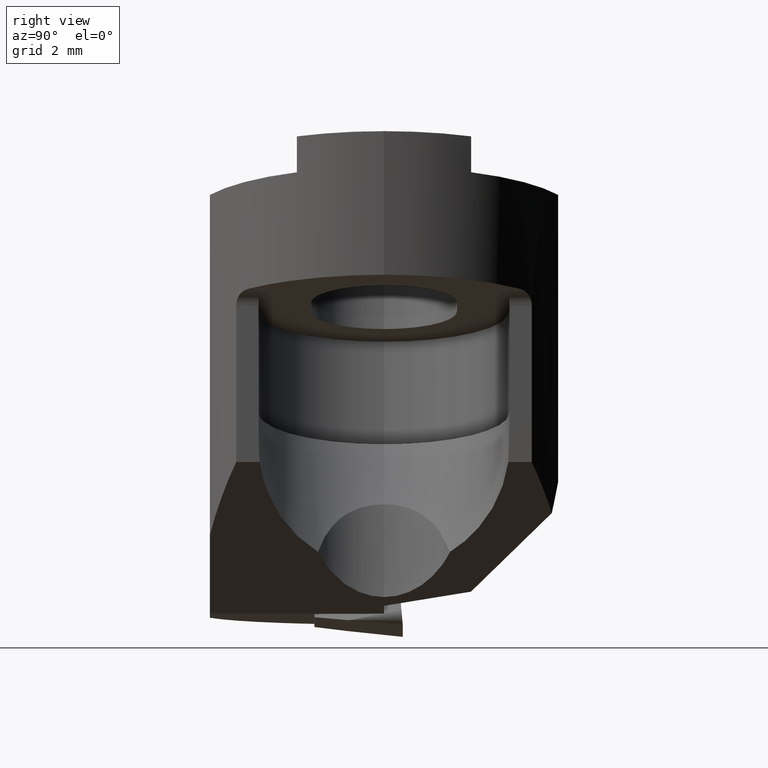
[diagram: clean part render]
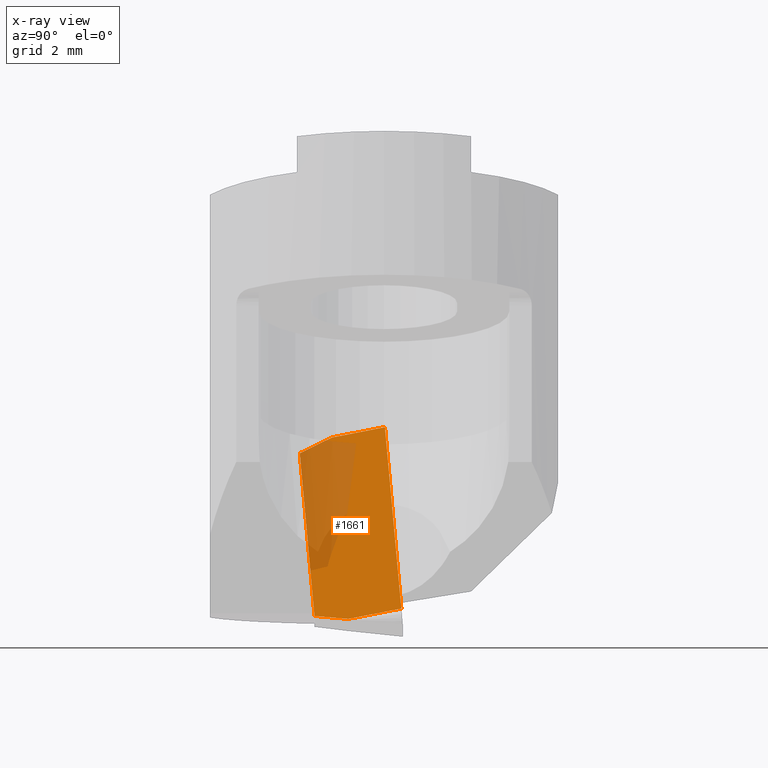
[diagram: x-ray — body ghosted, one internal face saturated and labeled with its STEP entity id]
A machine part, right view, then the same camera in x-ray: the body is ghosted and one INTERNAL B-rep face — a face not visible from any outside direction — is saturated and labeled: STEP entity #1661.
In plain terms, the highlighted planar face has unit normal (0.8242, -0.2329, 0.5162).
Its self-contained STEP definition (entity closure, byte-faithful):
#981=VERTEX_POINT('NONE',#2569);
#1071=VERTEX_POINT('NONE',#2665);
#1317=EDGE_CURVE('NONE',#981,#1071,#2934,.T.);
#1319=EDGE_CURVE('NONE',#1655,#1369,#2936,.T.);
#1369=VERTEX_POINT('NONE',#2993);
#1655=VERTEX_POINT('NONE',#3305);
#1657=EDGE_CURVE('NONE',#1917,#1655,#3307,.T.);
#1661=ADVANCED_FACE('NONE',(#3311),#3312,.T.);
#1707=EDGE_CURVE('NONE',#1959,#1071,#3363,.T.);
#1765=EDGE_CURVE('NONE',#1917,#1959,#3428,.T.);
#1917=VERTEX_POINT('NONE',#3598);
#1959=VERTEX_POINT('NONE',#3643);
#2305=EDGE_CURVE('NONE',#1369,#981,#4038,.T.);
#2569=CARTESIAN_POINT('',(-2.52483729506196,0.026674577841718,-8.50204700454868));
#2665=CARTESIAN_POINT('',(0.870120202274251,0.497315588679057,-13.7109586596067));
#2934=LINE('',#4908,#4909);
#2936=LINE('',#4912,#4913);
#2993=CARTESIAN_POINT('',(-2.7694284601527,-1.497745291173,-8.79919758422835));
#3305=CARTESIAN_POINT('',(-2.74567513341685,-2.41832545053201,-9.25243805846347));
#3307=LINE('',#5461,#5462);
#3311=FACE_OUTER_BOUND('',#5468,.T.);
#3312=PLANE('',#5469);
#3363=LINE('',#5541,#5542);
#3428=LINE('',#5628,#5629);
#3598=CARTESIAN_POINT('',(0.298562935917573,-1.99630447285991,-13.9232379646683));
#3643=CARTESIAN_POINT('',(0.625529037183503,-1.02710428033566,-14.0081092392863));
#4038=LINE('',#7228,#7229);
#4908=CARTESIAN_POINT('',(0.870120202274251,0.497315588679057,-13.7109586596067));
#4909=VECTOR('',#7948,1000.0);
#4912=CARTESIAN_POINT('',(-2.80397689414849,-0.15879166892377,-8.13997419280782));
#4913=VECTOR('',#7949,1000.0);
#5461=CARTESIAN_POINT('',(0.473922649918464,-1.97199445627729,-14.1922938390949));
#5462=VECTOR('',#8340,1000.0);
#5468=EDGE_LOOP('',(#8343,#8344,#8345,#8346,#8347,#8348));
#5469=AXIS2_PLACEMENT_3D('',#8349,#8350,#8351);
#5541=CARTESIAN_POINT('',(0.870120202274251,0.497315588679057,-13.7109586596067));
#5542=VECTOR('',#8425,1000.0);
#5628=CARTESIAN_POINT('',(1.10109049828164,0.382565584120876,-14.1315517221809));
#5629=VECTOR('',#8519,1000.0);
#7228=CARTESIAN_POINT('',(-2.52483729506196,0.026674577841718,-8.50204700454868));
#7229=VECTOR('',#9337,1000.0);
#7948=DIRECTION('',(0.544466562492887,0.0754790873051707,-0.835379596175749));
#7949=DIRECTION('',(-0.0231427854071319,0.896918116566449,0.441590651688295));
#8340=DIRECTION('',(-0.544466562492887,-0.0754790873051707,0.835379596175749));
#8343=ORIENTED_EDGE('',*,*,#1657,.F.);
#8344=ORIENTED_EDGE('',*,*,#1765,.T.);
#8345=ORIENTED_EDGE('',*,*,#1707,.T.);
#8346=ORIENTED_EDGE('',*,*,#1317,.F.);
#8347=ORIENTED_EDGE('',*,*,#2305,.F.);
#8348=ORIENTED_EDGE('',*,*,#1319,.F.);
#8349=CARTESIAN_POINT('',(0.870120202274251,0.497315588679057,-13.7109586596067));
#8350=DIRECTION('',(0.824229927169801,-0.232860132679661,0.516160038908549));
#8351=DIRECTION('',(-5.0360929577944E-017,-0.911532429256536,-0.41122819749341));
#8425=DIRECTION('',(0.155567314963148,0.969576745795808,0.188996678614117));
#8519=DIRECTION('',(0.318561959810982,0.944288449427334,-0.0826897940468357));
#9337=DIRECTION('',(0.155567314963148,0.969576745795808,0.188996678614117));